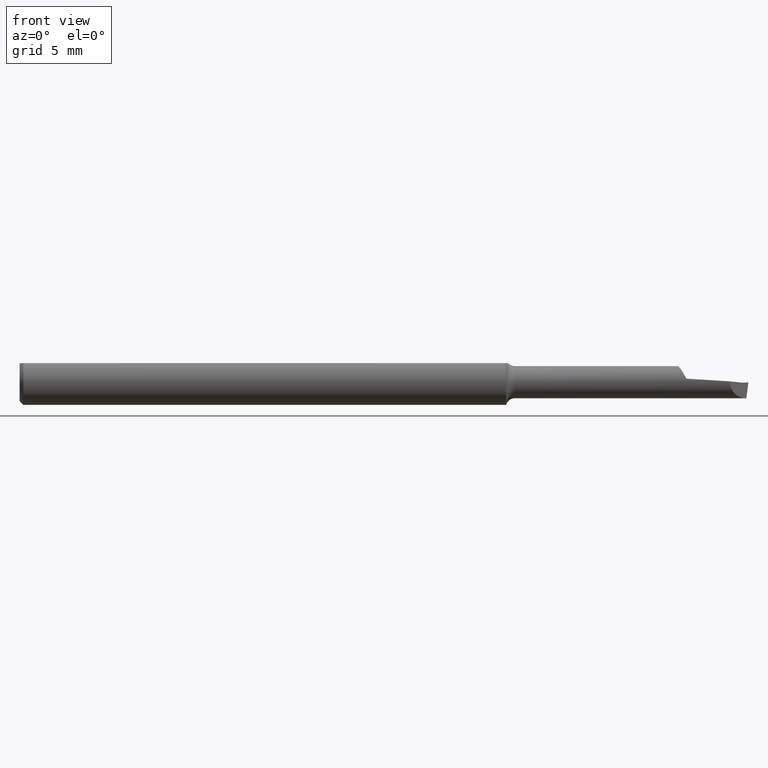
[diagram: clean part render]
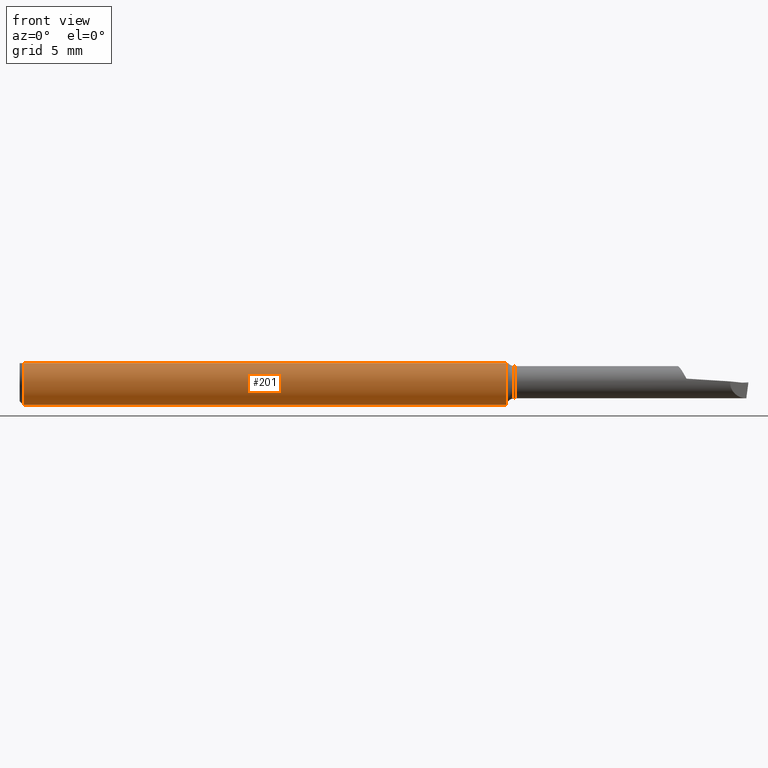
[diagram: same view with one face highlighted and labeled with its STEP entity id]
A machine part, front view. The second image highlights one B-rep face of the part: STEP entity #201.
In plain terms, the highlighted cylindrical surface (edge-blend (fillet) strip) has radius 1.5837 mm, axis along (-1, -0, -0).
Its self-contained STEP definition (entity closure, byte-faithful):
#5 = AXIS2_PLACEMENT_3D ( 'NONE', #195, #612, #701 ) ;
#70 = CARTESIAN_POINT ( 'NONE',  ( 1.334999999999999742, 0.000000000000000000, 0.000000000000000000 ) ) ;
#90 = VECTOR ( 'NONE', #217, 39.37007874015748143 ) ;
#94 = DIRECTION ( 'NONE',  ( 0.000000000000000000, 0.000000000000000000, 1.000000000000000000 ) ) ;
#99 = ORIENTED_EDGE ( 'NONE', *, *, #131, .F. ) ;
#131 = EDGE_CURVE ( 'NONE', #848, #477, #249, .T. ) ;
#147 = AXIS2_PLACEMENT_3D ( 'NONE', #242, #587, #843 ) ;
#151 = CARTESIAN_POINT ( 'NONE',  ( 1.334999999999999742, 0.000000000000000000, 0.000000000000000000 ) ) ;
#166 = LINE ( 'NONE', #251, #807 ) ;
#177 = ORIENTED_EDGE ( 'NONE', *, *, #449, .F. ) ;
#195 = CARTESIAN_POINT ( 'NONE',  ( 0.01000000000000000021, 0.000000000000000000, 0.000000000000000000 ) ) ;
#201 = ADVANCED_FACE ( 'NONE', ( #568 ), #445, .T. ) ;
#213 = CARTESIAN_POINT ( 'NONE',  ( 1.334999999999999742, -0.03386738844375224156, 0.05234999999999997988 ) ) ;
#217 = DIRECTION ( 'NONE',  ( -1.000000000000000000, -0.000000000000000000, -0.000000000000000000 ) ) ;
#228 = DIRECTION ( 'NONE',  ( 0.000000000000000000, 0.000000000000000000, -1.000000000000000000 ) ) ;
#242 = CARTESIAN_POINT ( 'NONE',  ( 0.000000000000000000, 0.000000000000000000, 0.000000000000000000 ) ) ;
#249 = CIRCLE ( 'NONE', #637, 0.06235000000000000264 ) ;
#251 = CARTESIAN_POINT ( 'NONE',  ( 0.000000000000000000, -0.03386738844375224156, 0.05234999999999997988 ) ) ;
#262 = CIRCLE ( 'NONE', #738, 0.06235000000000000264 ) ;
#269 = EDGE_CURVE ( 'NONE', #589, #659, #262, .T. ) ;
#392 = CIRCLE ( 'NONE', #5, 0.06235000000000000264 ) ;
#409 = DIRECTION ( 'NONE',  ( 0.000000000000000000, 0.000000000000000000, -1.000000000000000000 ) ) ;
#436 = DIRECTION ( 'NONE',  ( -1.000000000000000000, -0.000000000000000000, -0.000000000000000000 ) ) ;
#445 = CYLINDRICAL_SURFACE ( 'NONE', #147, 0.06235000000000000264 ) ;
#449 = EDGE_CURVE ( 'NONE', #867, #848, #640, .T. ) ;
#453 = CARTESIAN_POINT ( 'NONE',  ( 1.334999999999999742, 0.03386738844375221380, 0.05234999999999997988 ) ) ;
#469 = CARTESIAN_POINT ( 'NONE',  ( 0.01000000000000000021, 0.000000000000000000, -0.06235000000000000264 ) ) ;
#477 = VERTEX_POINT ( 'NONE', #453 ) ;
#487 = EDGE_CURVE ( 'NONE', #659, #867, #166, .T. ) ;
#501 = CARTESIAN_POINT ( 'NONE',  ( 0.01000000000000000021, 0.000000000000000000, 0.000000000000000000 ) ) ;
#508 = DIRECTION ( 'NONE',  ( 1.000000000000000000, 0.000000000000000000, 0.000000000000000000 ) ) ;
#568 = FACE_OUTER_BOUND ( 'NONE', #803, .T. ) ;
#570 = CARTESIAN_POINT ( 'NONE',  ( 1.334999999999999742, 7.635672792683717397E-18, -0.06234999999999975978 ) ) ;
#587 = DIRECTION ( 'NONE',  ( -1.000000000000000000, -0.000000000000000000, -0.000000000000000000 ) ) ;
#589 = VERTEX_POINT ( 'NONE', #469 ) ;
#612 = DIRECTION ( 'NONE',  ( -1.000000000000000000, -0.000000000000000000, -0.000000000000000000 ) ) ;
#637 = AXIS2_PLACEMENT_3D ( 'NONE', #70, #686, #409 ) ;
#640 = CIRCLE ( 'NONE', #669, 0.06235000000000000264 ) ;
#647 = ORIENTED_EDGE ( 'NONE', *, *, #269, .F. ) ;
#659 = VERTEX_POINT ( 'NONE', #736 ) ;
#669 = AXIS2_PLACEMENT_3D ( 'NONE', #151, #813, #228 ) ;
#686 = DIRECTION ( 'NONE',  ( 1.000000000000000000, 0.000000000000000000, 0.000000000000000000 ) ) ;
#701 = DIRECTION ( 'NONE',  ( 0.000000000000000000, 0.000000000000000000, 1.000000000000000000 ) ) ;
#704 = EDGE_CURVE ( 'NONE', #760, #589, #392, .T. ) ;
#706 = LINE ( 'NONE', #766, #90 ) ;
#736 = CARTESIAN_POINT ( 'NONE',  ( 0.01000000000000000021, -0.03386738844375224156, 0.05234999999999997988 ) ) ;
#738 = AXIS2_PLACEMENT_3D ( 'NONE', #501, #436, #94 ) ;
#760 = VERTEX_POINT ( 'NONE', #771 ) ;
#764 = ORIENTED_EDGE ( 'NONE', *, *, #704, .F. ) ;
#766 = CARTESIAN_POINT ( 'NONE',  ( 0.000000000000000000, 0.03386738844375223462, 0.05234999999999997988 ) ) ;
#771 = CARTESIAN_POINT ( 'NONE',  ( 0.01000000000000000021, 0.03386738844375223462, 0.05234999999999997988 ) ) ;
#785 = EDGE_CURVE ( 'NONE', #477, #760, #706, .T. ) ;
#803 = EDGE_LOOP ( 'NONE', ( #826, #99, #177, #856, #647, #764 ) ) ;
#807 = VECTOR ( 'NONE', #508, 39.37007874015748143 ) ;
#813 = DIRECTION ( 'NONE',  ( 1.000000000000000000, 0.000000000000000000, 0.000000000000000000 ) ) ;
#826 = ORIENTED_EDGE ( 'NONE', *, *, #785, .F. ) ;
#843 = DIRECTION ( 'NONE',  ( 0.000000000000000000, 0.000000000000000000, 1.000000000000000000 ) ) ;
#848 = VERTEX_POINT ( 'NONE', #570 ) ;
#856 = ORIENTED_EDGE ( 'NONE', *, *, #487, .F. ) ;
#867 = VERTEX_POINT ( 'NONE', #213 ) ;